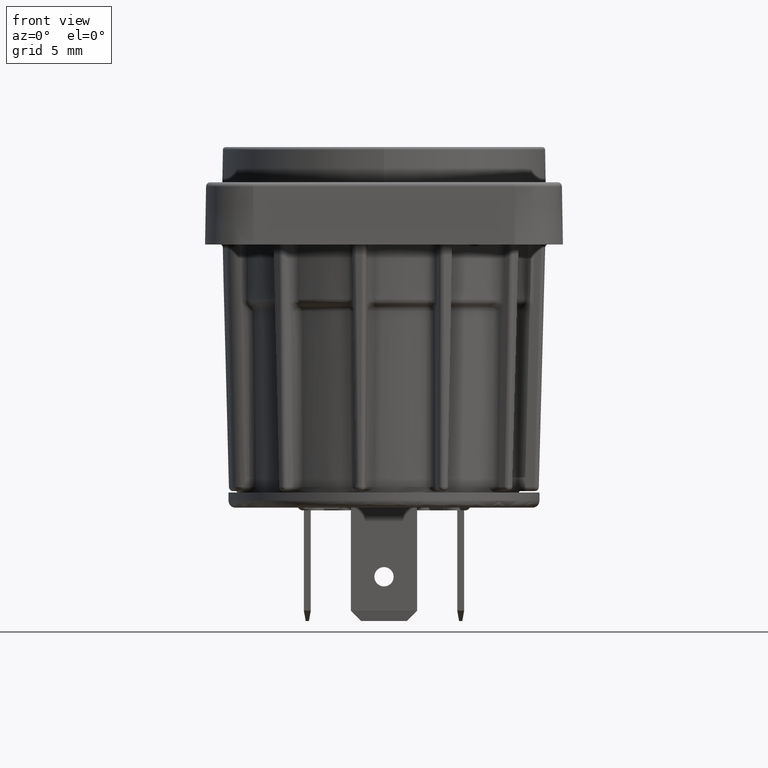
[diagram: clean part render]
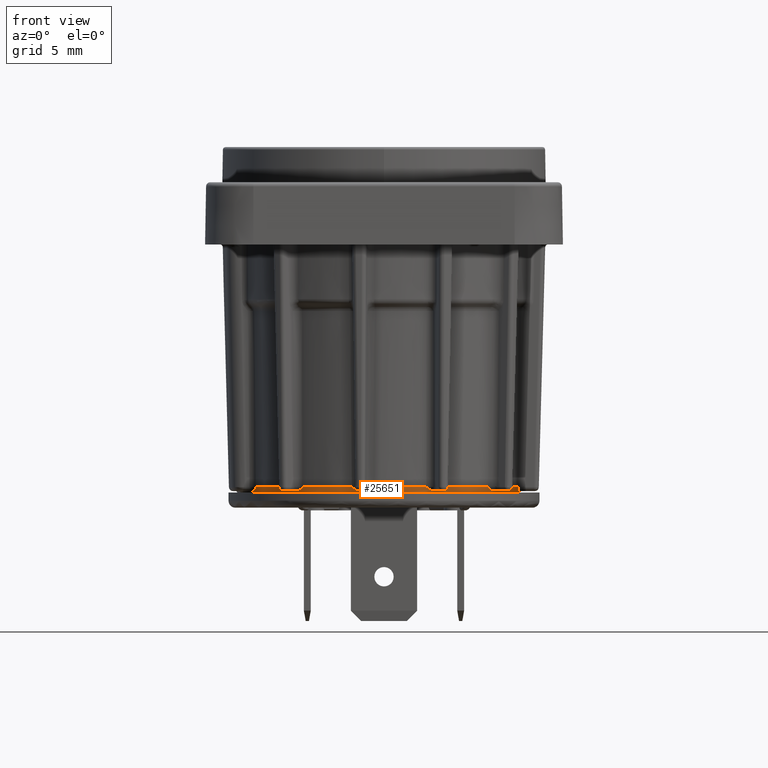
[diagram: same view with one face highlighted and labeled with its STEP entity id]
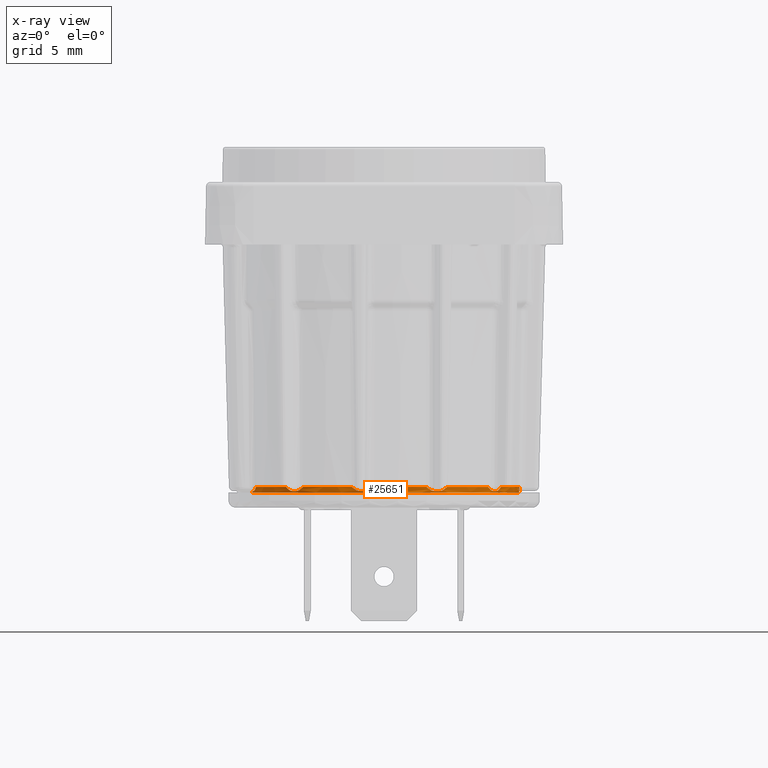
[diagram: x-ray of the same camera — body ghosted, the highlighted face saturated]
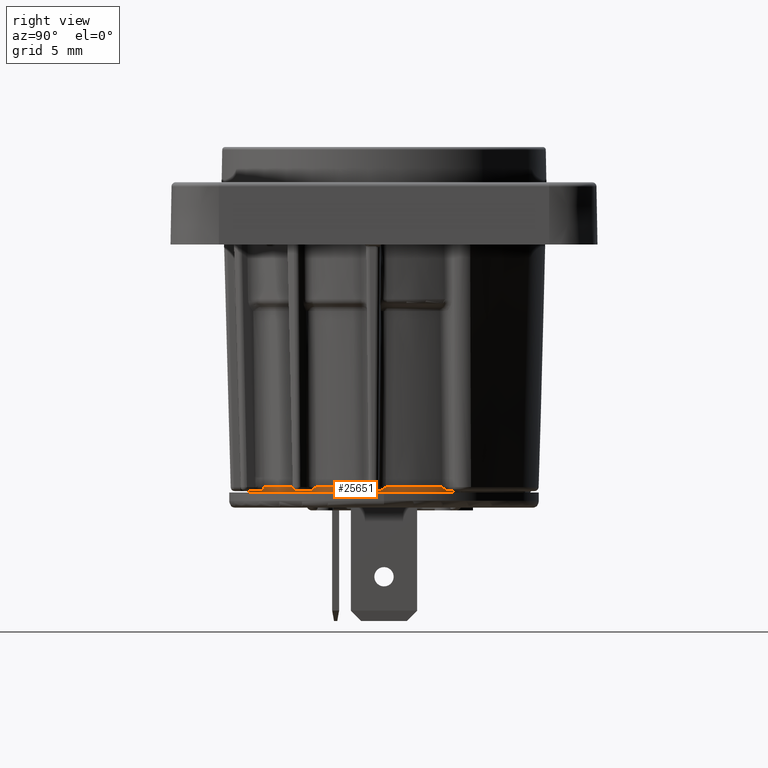
[diagram: same view with one face highlighted and labeled with its STEP entity id]
A machine part, front view. The second image highlights one B-rep face of the part: STEP entity #25651.
The next image is the same camera in x-ray: the body ghosted, the highlighted face saturated — about 0% of this face is hidden behind the body in this view.
A second angle (right view) of the same face is appended — the face is thin or edge-on in the first view.
In plain terms, the highlighted cylindrical surface (partial cylindrical patch) has radius 9.7999 mm, axis along (0, 0, 1).
Its self-contained STEP definition (entity closure, byte-faithful):
#3413=CARTESIAN_POINT('',(8.438472940982E0,4.983060482447E0,-1.785E1));
#3414=CARTESIAN_POINT('',(8.423401711862E0,5.008582580678E0,-1.788331013243E1));
#3415=CARTESIAN_POINT('',(8.408228310704E0,5.034013254970E0,-1.791664350661E1));
#3416=CARTESIAN_POINT('',(8.392953276214E0,5.059352987359E0,-1.795E1));
#3428=CARTESIAN_POINT('',(0.E0,0.E0,-1.795E1));
#3429=DIRECTION('',(0.E0,0.E0,-1.E0));
#3430=DIRECTION('',(8.564295226937E-1,5.162639563815E-1,0.E0));
#3431=AXIS2_PLACEMENT_3D('',#3428,#3429,#3430);
#3433=CARTESIAN_POINT('',(9.788232561850E0,-4.787699474191E-1,
-1.784999999282E1));
#3434=CARTESIAN_POINT('',(9.789479816119E0,-4.532704148428E-1,
-1.784999993744E1));
#3435=CARTESIAN_POINT('',(9.791626640025E0,-4.052954863772E-1,
-1.784588138039E1));
#3436=CARTESIAN_POINT('',(9.793992972525E0,-3.428458483995E-1,
-1.783262117726E1));
#3437=CARTESIAN_POINT('',(9.795732962065E0,-2.884352684042E-1,
-1.781552166700E1));
#3438=CARTESIAN_POINT('',(9.797012108746E0,-2.406989814552E-1,
-1.779647876372E1));
#3439=CARTESIAN_POINT('',(9.797946662365E0,-1.986897885027E-1,
-1.777675073206E1));
#3440=CARTESIAN_POINT('',(9.798626149650E0,-1.614116194294E-1,
-1.775703560890E1));
#3441=CARTESIAN_POINT('',(9.799112183485E0,-1.282336613321E-1,
-1.773783817530E1));
#3442=CARTESIAN_POINT('',(9.799451852802E0,-9.860286084843E-2,
-1.771946450270E1));
#3443=CARTESIAN_POINT('',(9.799681104063E0,-7.197307368722E-2,
-1.770203406494E1));
#3444=CARTESIAN_POINT('',(9.799826216365E0,-4.793347070480E-2,
-1.768561230197E1));
#3445=CARTESIAN_POINT('',(9.799907151241E0,-2.610725933773E-2,
-1.767018975187E1));
#3446=CARTESIAN_POINT('',(9.799938853426E0,-6.155591697604E-3,
-1.765570689033E1));
#3447=CARTESIAN_POINT('',(9.799932210910E0,1.227573345948E-2,
-1.764203865298E1));
#3448=CARTESIAN_POINT('',(9.799895249258E0,2.931487468296E-2,
-1.762918555532E1));
#3449=CARTESIAN_POINT('',(9.799835214560E0,4.496289411572E-2,
-1.761722583715E1));
#3450=CARTESIAN_POINT('',(9.799758471394E0,5.927538257919E-2,
-1.760618258155E1));
#3451=CARTESIAN_POINT('',(9.799669890644E0,7.238875496211E-2,
-1.759599534820E1));
#3452=CARTESIAN_POINT('',(9.799573024132E0,8.443639536409E-2,
-1.758661547145E1));
#3453=CARTESIAN_POINT('',(9.799471110643E0,9.551931442864E-2,
-1.757795183781E1));
#3454=CARTESIAN_POINT('',(9.799360617874E0,1.062058558382E-1,
-1.756981004040E1));
#3455=CARTESIAN_POINT('',(9.799267302335E0,1.144311646534E-1,
-1.756316810326E1));
#3456=CARTESIAN_POINT('',(9.799155460301E0,1.238541945938E-1,
-1.755748015136E1));
#3457=CARTESIAN_POINT('',(9.799096830290E0,1.283718693695E-1,
-1.755532107111E1));
#3463=CARTESIAN_POINT('',(-9.536423760542E0,-2.257285805296E0,-1.795E1));
#3464=CARTESIAN_POINT('',(-9.529800219551E0,-2.285268479681E0,
-1.791665154727E1));
#3465=CARTESIAN_POINT('',(-9.523049615925E0,-2.313238482852E0,
-1.788331819551E1));
#3466=CARTESIAN_POINT('',(-9.516171484446E0,-2.341195768413E0,-1.785E1));
#3640=CARTESIAN_POINT('',(0.E0,0.E0,-1.785E1));
#3641=DIRECTION('',(0.E0,0.E0,1.E0));
#3642=DIRECTION('',(-9.710443909407E-1,-2.388991226911E-1,0.E0));
#3643=AXIS2_PLACEMENT_3D('',#3640,#3641,#3642);
#3658=CARTESIAN_POINT('',(0.E0,0.E0,-1.785E1));
#3659=DIRECTION('',(0.E0,0.E0,1.E0));
#3660=DIRECTION('',(-6.781562666008E-1,-7.349177355800E-1,0.E0));
#3661=AXIS2_PLACEMENT_3D('',#3658,#3659,#3660);
#3700=CARTESIAN_POINT('',(0.E0,0.E0,-1.785E1));
#3701=DIRECTION('',(0.E0,0.E0,1.E0));
#3702=DIRECTION('',(-1.770801826825E-1,-9.841964280067E-1,0.E0));
#3703=AXIS2_PLACEMENT_3D('',#3700,#3701,#3702);
#3742=CARTESIAN_POINT('',(0.E0,0.E0,-1.785E1));
#3743=DIRECTION('',(0.E0,0.E0,1.E0));
#3744=DIRECTION('',(3.713721352045E-1,-9.284841071303E-1,0.E0));
#3745=AXIS2_PLACEMENT_3D('',#3742,#3743,#3744);
#3784=CARTESIAN_POINT('',(0.E0,0.E0,-1.785E1));
#3785=DIRECTION('',(0.E0,0.E0,1.E0));
#3786=DIRECTION('',(8.069630471241E-1,-5.906019307251E-1,0.E0));
#3787=AXIS2_PLACEMENT_3D('',#3784,#3785,#3786);
#3826=CARTESIAN_POINT('',(0.E0,0.E0,-1.785E1));
#3827=DIRECTION('',(0.E0,0.E0,1.E0));
#3828=DIRECTION('',(9.958848183077E-1,-9.062796844364E-2,0.E0));
#3829=AXIS2_PLACEMENT_3D('',#3826,#3827,#3828);
#3888=CARTESIAN_POINT('',(0.E0,0.E0,-1.785E1));
#3889=DIRECTION('',(0.E0,0.E0,1.E0));
#3890=DIRECTION('',(8.753122971789E-1,4.835580445070E-1,0.E0));
#3891=AXIS2_PLACEMENT_3D('',#3888,#3889,#3890);
#5655=CARTESIAN_POINT('',(-6.645887007571E0,-7.202145737904E0,
-1.784999999771E1));
#5656=CARTESIAN_POINT('',(-6.662628349994E0,-7.186697415617E0,
-1.784999996452E1));
#5657=CARTESIAN_POINT('',(-6.694108342850E0,-7.157432611210E0,
-1.784671434057E1));
#5658=CARTESIAN_POINT('',(-6.735169749859E0,-7.118787082505E0,
-1.783592554594E1));
#5659=CARTESIAN_POINT('',(-6.771020340188E0,-7.084681728954E0,
-1.782181377155E1));
#5660=CARTESIAN_POINT('',(-6.802421184972E0,-7.054526230503E0,
-1.780597723100E1));
#5661=CARTESIAN_POINT('',(-6.830146745957E0,-7.027677529582E0,
-1.778937555818E1));
#5662=CARTESIAN_POINT('',(-6.854665410947E0,-7.003758096124E0,
-1.777270742347E1));
#5663=CARTESIAN_POINT('',(-6.876532861196E0,-6.982284214425E0,
-1.775632177353E1));
#5664=CARTESIAN_POINT('',(-6.896067999216E0,-6.962987025763E0,
-1.774051478968E1));
#5665=CARTESIAN_POINT('',(-6.913569931774E0,-6.945606543595E0,
-1.772545679915E1));
#5666=CARTESIAN_POINT('',(-6.929314733153E0,-6.929896357863E0,
-1.771122158885E1));
#5667=CARTESIAN_POINT('',(-6.943547140796E0,-6.915633946120E0,
-1.769782097086E1));
#5668=CARTESIAN_POINT('',(-6.956434252685E0,-6.902669109712E0,
-1.768527515636E1));
#5669=CARTESIAN_POINT('',(-6.968138745062E0,-6.890852174257E0,
-1.767356293956E1));
#5670=CARTESIAN_POINT('',(-6.978808963167E0,-6.880044556802E0,
-1.766263896660E1));
#5671=CARTESIAN_POINT('',(-6.988585727851E0,-6.870112545405E0,
-1.765243783701E1));
#5672=CARTESIAN_POINT('',(-6.997600146763E0,-6.860930023857E0,
-1.764288240350E1));
#5673=CARTESIAN_POINT('',(-7.005985417117E0,-6.852366760719E0,
-1.763387466540E1));
#5674=CARTESIAN_POINT('',(-7.013776537797E0,-6.844391458402E0,
-1.762541096163E1));
#5675=CARTESIAN_POINT('',(-7.020993805892E0,-6.836987366458E0,
-1.761749804160E1));
#5676=CARTESIAN_POINT('',(-7.027658429184E0,-6.830136338660E0,
-1.761013652519E1));
#5677=CARTESIAN_POINT('',(-7.033791878188E0,-6.823819516964E0,
-1.760332155632E1));
#5678=CARTESIAN_POINT('',(-7.039403736785E0,-6.818029936277E0,
-1.759705830190E1));
#5679=CARTESIAN_POINT('',(-7.044550691519E0,-6.812711621841E0,
-1.759129638076E1));
#5680=CARTESIAN_POINT('',(-7.049271443754E0,-6.807826637550E0,
-1.758600300852E1));
#5681=CARTESIAN_POINT('',(-7.053591697735E0,-6.803350152481E0,
-1.758115875223E1));
#5682=CARTESIAN_POINT('',(-7.057547504991E0,-6.799246317812E0,
-1.757673100386E1));
#5683=CARTESIAN_POINT('',(-7.061183291645E0,-6.795470278138E0,
-1.757267867172E1));
#5684=CARTESIAN_POINT('',(-7.064548822241E0,-6.791971337684E0,
-1.756895528532E1));
#5685=CARTESIAN_POINT('',(-7.067706327339E0,-6.788685516491E0,
-1.756551378962E1));
#5686=CARTESIAN_POINT('',(-7.070697549433E0,-6.785569973181E0,
-1.756231906303E1));
#5687=CARTESIAN_POINT('',(-7.073673043451E0,-6.782468011808E0,
-1.755935195678E1));
#5688=CARTESIAN_POINT('',(-7.076444399075E0,-6.779576603998E0,
-1.755672743279E1));
#5689=CARTESIAN_POINT('',(-7.079008052209E0,-6.776899500014E0,
-1.755540663338E1));
#5690=CARTESIAN_POINT('',(-7.080156192822E0,-6.775699871112E0,
-1.755523696714E1));
#5713=CARTESIAN_POINT('',(-9.259615385055E0,-3.209098165242E0,
-1.755532354133E1));
#5714=CARTESIAN_POINT('',(-9.167210546752E0,-3.475851853088E0,
-1.754966985121E1));
#5715=CARTESIAN_POINT('',(-8.960204419357E0,-3.998671539369E0,
-1.755780579434E1));
#5716=CARTESIAN_POINT('',(-8.584170470667E0,-4.752621292174E0,
-1.755458927459E1));
#5717=CARTESIAN_POINT('',(-8.144664046495E0,-5.471726744657E0,
-1.755525143891E1));
#5718=CARTESIAN_POINT('',(-7.645109146500E0,-6.150397425099E0,
-1.755581930137E1));
#5719=CARTESIAN_POINT('',(-7.274492768842E0,-6.572648284197E0,
-1.755386355858E1));
#5720=CARTESIAN_POINT('',(-7.080156192822E0,-6.775699871112E0,
-1.755523696714E1));
#5761=CARTESIAN_POINT('',(-9.259615385055E0,-3.209098165242E0,
-1.755532354133E1));
#5762=CARTESIAN_POINT('',(-9.274320393501E0,-3.166647842244E0,
-1.757807942168E1));
#5763=CARTESIAN_POINT('',(-9.297184659192E0,-3.099134377631E0,
-1.764799083116E1));
#5764=CARTESIAN_POINT('',(-9.330715104653E0,-2.996716653065E0,
-1.771861612426E1));
#5765=CARTESIAN_POINT('',(-9.361851497728E0,-2.897910717890E0,
-1.777959763061E1));
#5766=CARTESIAN_POINT('',(-9.390966842818E0,-2.802079937252E0,
-1.782121491829E1));
#5767=CARTESIAN_POINT('',(-9.417484473258E0,-2.711535783106E0,
-1.784519795951E1));
#5768=CARTESIAN_POINT('',(-9.433156838266E0,-2.656130683724E0,
-1.784999991372E1));
#5769=CARTESIAN_POINT('',(-9.440557806935E0,-2.629559971047E0,
-1.784999998422E1));
#13162=CARTESIAN_POINT('',(8.578003215009E0,4.738837219267E0,
-1.784999999792E1));
#13163=CARTESIAN_POINT('',(8.588854328377E0,4.719195083524E0,
-1.784999996629E1));
#13164=CARTESIAN_POINT('',(8.609208438337E0,4.682032288501E0,
-1.784681059905E1));
#13165=CARTESIAN_POINT('',(8.635665975354E0,4.633022081245E0,
-1.783629463430E1));
#13166=CARTESIAN_POINT('',(8.658696167045E0,4.589814638736E0,
-1.782249740811E1));
#13167=CARTESIAN_POINT('',(8.678807922637E0,4.551654430025E0,
-1.780697873614E1));
#13168=CARTESIAN_POINT('',(8.696524913245E0,4.517699015725E0,
-1.779067169514E1));
#13169=CARTESIAN_POINT('',(8.712157005298E0,4.487469393085E0,
-1.777426702758E1));
#13170=CARTESIAN_POINT('',(8.726069823986E0,4.460347502851E0,
-1.775811221661E1));
#13171=CARTESIAN_POINT('',(8.738481173587E0,4.435976494703E0,
-1.774249505162E1));
#13172=CARTESIAN_POINT('',(8.749584665323E0,4.414030669113E0,
-1.772759115916E1));
#13173=CARTESIAN_POINT('',(8.759557662465E0,4.394202461257E0,
-1.771348205981E1));
#13174=CARTESIAN_POINT('',(8.768562346086E0,4.376203150876E0,
-1.770017946248E1));
#13175=CARTESIAN_POINT('',(8.776708345122E0,4.359840483460E0,
-1.768770555970E1));
#13176=CARTESIAN_POINT('',(8.784098914344E0,4.344928960122E0,
-1.767604605666E1));
#13177=CARTESIAN_POINT('',(8.790828079242E0,4.331296512702E0,
-1.766516173189E1));
#13178=CARTESIAN_POINT('',(8.796984331829E0,4.318778024091E0,
-1.765499327039E1));
#13179=CARTESIAN_POINT('',(8.802648861877E0,4.307219703671E0,
-1.764547096174E1));
#13180=CARTESIAN_POINT('',(8.807906276402E0,4.296457717600E0,
-1.763649980643E1));
#13181=CARTESIAN_POINT('',(8.812794516770E0,4.286421436183E0,
-1.762805147264E1));
#13182=CARTESIAN_POINT('',(8.817324502313E0,4.277094708332E0,
-1.762013772834E1));
#13183=CARTESIAN_POINT('',(8.821511883296E0,4.268450986114E0,
-1.761275735014E1));
#13184=CARTESIAN_POINT('',(8.825370093194E0,4.260467597015E0,
-1.760590752722E1));
#13185=CARTESIAN_POINT('',(8.828909765037E0,4.253127079696E0,
-1.759958676331E1));
#13186=CARTESIAN_POINT('',(8.832149422784E0,4.246395059511E0,
-1.759377646902E1));
#13187=CARTESIAN_POINT('',(8.835125571640E0,4.240199041963E0,
-1.758842295176E1));
#13188=CARTESIAN_POINT('',(8.837851279526E0,4.234514638675E0,
-1.758351276330E1));
#13189=CARTESIAN_POINT('',(8.840346931275E0,4.229301795624E0,
-1.757901793596E1));
#13190=CARTESIAN_POINT('',(8.842636196659E0,4.224513117022E0,
-1.757490358363E1));
#13191=CARTESIAN_POINT('',(8.844747213119E0,4.220091408918E0,
-1.757112790932E1));
#13192=CARTESIAN_POINT('',(8.846711112560E0,4.215972764114E0,
-1.756764632406E1));
#13193=CARTESIAN_POINT('',(8.848561616225E0,4.212087433381E0,
-1.756441887861E1));
#13194=CARTESIAN_POINT('',(8.850336022935E0,4.208357778576E0,
-1.756141103630E1));
#13195=CARTESIAN_POINT('',(8.852078465783E0,4.204691378533E0,
-1.755864772279E1));
#13196=CARTESIAN_POINT('',(8.853855833287E0,4.200947595066E0,
-1.755617351646E1));
#13197=CARTESIAN_POINT('',(8.855152499206E0,4.198213127516E0,
-1.755527314860E1));
#13198=CARTESIAN_POINT('',(8.855789180093E0,4.196869704532E0,
-1.755523641274E1));
#13217=CARTESIAN_POINT('',(9.799096830290E0,1.283718693695E-1,
-1.755532107111E1));
#13218=CARTESIAN_POINT('',(9.795438410800E0,4.102675943425E-1,
-1.755033570366E1));
#13219=CARTESIAN_POINT('',(9.763757772302E0,9.713203047166E-1,
-1.755750685672E1));
#13220=CARTESIAN_POINT('',(9.644578100671E0,1.804755830583E0,
-1.755463677759E1));
#13221=CARTESIAN_POINT('',(9.454284733017E0,2.625163011812E0,
-1.755536036452E1));
#13222=CARTESIAN_POINT('',(9.194365273832E0,3.426157911313E0,
-1.755533609593E1));
#13223=CARTESIAN_POINT('',(8.975937601211E0,3.943351570891E0,
-1.755491842088E1));
#13224=CARTESIAN_POINT('',(8.855789180093E0,4.196869704532E0,
-1.755523641274E1));
#13419=CARTESIAN_POINT('',(9.759606050217E0,-8.881481250185E-1,
-1.784999999768E1));
#13420=CARTESIAN_POINT('',(9.757541555673E0,-9.108342676441E-1,
-1.784999996434E1));
#13421=CARTESIAN_POINT('',(9.753488030919E0,-9.536243078215E-1,
-1.784671434102E1));
#13422=CARTESIAN_POINT('',(9.747825072534E0,-1.009726418759E0,
-1.783592554632E1));
#13423=CARTESIAN_POINT('',(9.742591933060E0,-1.058930627413E0,
-1.782181377272E1));
#13424=CARTESIAN_POINT('',(9.737783590839E0,-1.102200096435E0,
-1.780597723241E1));
#13425=CARTESIAN_POINT('',(9.733361336435E0,-1.140540716278E0,
-1.778937555994E1));
#13426=CARTESIAN_POINT('',(9.729310791530E0,-1.174553909730E0,
-1.777270742533E1));
#13427=CARTESIAN_POINT('',(9.725586476024E0,-1.204974995387E0,
-1.775632177550E1));
#13428=CARTESIAN_POINT('',(9.722169225460E0,-1.232220646754E0,
-1.774051479172E1));
#13429=CARTESIAN_POINT('',(9.719034863355E0,-1.256686430600E0,
-1.772545680113E1));
#13430=CARTESIAN_POINT('',(9.716155962778E0,-1.278741376821E0,
-1.771122159095E1));
#13431=CARTESIAN_POINT('',(9.713504971610E0,-1.298715111060E0,
-1.769782097278E1));
#13432=CARTESIAN_POINT('',(9.711064451955E0,-1.316831636956E0,
-1.768527515836E1));
#13433=CARTESIAN_POINT('',(9.708814690231E0,-1.333311129728E0,
-1.767356294150E1));
#13434=CARTESIAN_POINT('',(9.706736048046E0,-1.348355643561E0,
-1.766263896836E1));
#13435=CARTESIAN_POINT('',(9.704808170839E0,-1.362158298170E0,
-1.765243783885E1));
#13436=CARTESIAN_POINT('',(9.703010817222E0,-1.374899882581E0,
-1.764288240537E1));
#13437=CARTESIAN_POINT('',(9.701321752980E0,-1.386765349084E0,
-1.763387466716E1));
#13438=CARTESIAN_POINT('',(9.699737454010E0,-1.397801517123E0,
-1.762541096325E1));
#13439=CARTESIAN_POINT('',(9.698256987355E0,-1.408034686610E0,
-1.761749804324E1));
#13440=CARTESIAN_POINT('',(9.696878867149E0,-1.417492729363E0,
-1.761013652680E1));
#13441=CARTESIAN_POINT('',(9.695601202726E0,-1.426204159106E0,
-1.760332155782E1));
#13442=CARTESIAN_POINT('',(9.694424302599E0,-1.434180819361E0,
-1.759705830329E1));
#13443=CARTESIAN_POINT('',(9.693338267590E0,-1.441501757830E0,
-1.759129638211E1));
#13444=CARTESIAN_POINT('',(9.692336560846E0,-1.448220772517E0,
-1.758600300993E1));
#13445=CARTESIAN_POINT('',(9.691415130425E0,-1.454373372066E0,
-1.758115875377E1));
#13446=CARTESIAN_POINT('',(9.690567482348E0,-1.460009981313E0,
-1.757673100547E1));
#13447=CARTESIAN_POINT('',(9.689785075332E0,-1.465193152164E0,
-1.757267867336E1));
#13448=CARTESIAN_POINT('',(9.689057984447E0,-1.469993227111E0,
-1.756895528698E1));
#13449=CARTESIAN_POINT('',(9.688373334545E0,-1.474498525532E0,
-1.756551379125E1));
#13450=CARTESIAN_POINT('',(9.687722548503E0,-1.478768244088E0,
-1.756231906462E1));
#13451=CARTESIAN_POINT('',(9.687072963067E0,-1.483017216706E0,
-1.755935195820E1));
#13452=CARTESIAN_POINT('',(9.686466149539E0,-1.486976057811E0,
-1.755672743418E1));
#13453=CARTESIAN_POINT('',(9.685902913125E0,-1.490639659359E0,
-1.755540663375E1));
#13454=CARTESIAN_POINT('',(9.685650127195E0,-1.492280828703E0,
-1.755523696716E1));
#13477=CARTESIAN_POINT('',(8.465513186541E0,-4.936990455088E0,
-1.755531359669E1));
#13478=CARTESIAN_POINT('',(8.620597690075E0,-4.671154674818E0,
-1.754920418517E1));
#13479=CARTESIAN_POINT('',(8.904229608015E0,-4.127254607482E0,
-1.755808953081E1));
#13480=CARTESIAN_POINT('',(9.251351066978E0,-3.276118803859E0,
-1.755429469600E1));
#13481=CARTESIAN_POINT('',(9.517315672054E0,-2.395982430745E0,
-1.755614601678E1));
#13482=CARTESIAN_POINT('',(9.638984259374E0,-1.795250980449E0,
-1.755373905124E1));
#13483=CARTESIAN_POINT('',(9.685650127195E0,-1.492280828703E0,
-1.755523696716E1));
#13527=CARTESIAN_POINT('',(8.465513186541E0,-4.936990455088E0,
-1.755531359669E1));
#13528=CARTESIAN_POINT('',(8.443065381030E0,-4.975469024882E0,
-1.757766648303E1));
#13529=CARTESIAN_POINT('',(8.407022490881E0,-5.036296448640E0,
-1.764733346265E1));
#13530=CARTESIAN_POINT('',(8.350511641100E0,-5.129481848114E0,
-1.771883147258E1));
#13531=CARTESIAN_POINT('',(8.295756495279E0,-5.217521007950E0,
-1.777975301253E1));
#13532=CARTESIAN_POINT('',(8.242437924897E0,-5.301329999281E0,
-1.782103690013E1));
#13533=CARTESIAN_POINT('',(8.190932659149E0,-5.380528039105E0,
-1.784515899243E1));
#13534=CARTESIAN_POINT('',(8.158998175007E0,-5.428649507330E0,
-1.784999993266E1));
#13535=CARTESIAN_POINT('',(8.143568140549E0,-5.451698385609E0,
-1.784999999282E1));
#14270=CARTESIAN_POINT('',(4.562955991346E0,-8.672843875348E0,
-1.755531359669E1));
#14271=CARTESIAN_POINT('',(4.523528637227E0,-8.693580028625E0,
-1.757766648303E1));
#14272=CARTESIAN_POINT('',(4.460728909214E0,-8.726064787707E0,
-1.764733346265E1));
#14273=CARTESIAN_POINT('',(4.363424252321E0,-8.775144300383E0,
-1.771883147258E1));
#14274=CARTESIAN_POINT('',(4.270335608350E0,-8.820789935682E0,
-1.777975301253E1));
#14275=CARTESIAN_POINT('',(4.180706897226E0,-8.863609453633E0,
-1.782103690012E1));
#14276=CARTESIAN_POINT('',(4.095059387677E0,-8.903479567996E0,
-1.784515899242E1));
#14277=CARTESIAN_POINT('',(4.042476916163E0,-8.927366189167E0,
-1.784999993266E1));
#14278=CARTESIAN_POINT('',(4.017177460198E0,-8.938736074003E0,
-1.784999999282E1));
#14461=CARTESIAN_POINT('',(7.908185073425E0,-5.787860242946E0,
-1.784999999771E1));
#14462=CARTESIAN_POINT('',(7.894862068298E0,-5.806063998294E0,
-1.784999996485E1));
#14463=CARTESIAN_POINT('',(7.869587684351E0,-5.840333610886E0,
-1.784677739583E1));
#14464=CARTESIAN_POINT('',(7.836119280833E0,-5.885139058969E0,
-1.783616988184E1));
#14465=CARTESIAN_POINT('',(7.806510536178E0,-5.924340910725E0,
-1.782227002367E1));
#14466=CARTESIAN_POINT('',(7.780280251161E0,-5.958733661985E0,
-1.780665169493E1));
#14467=CARTESIAN_POINT('',(7.756879310615E0,-5.989154771473E0,
-1.779025556246E1));
#14468=CARTESIAN_POINT('',(7.735998242635E0,-6.016094522843E0,
-1.777377541640E1));
#14469=CARTESIAN_POINT('',(7.717226175192E0,-6.040150243812E0,
-1.775755899656E1));
#14470=CARTESIAN_POINT('',(7.700330817480E0,-6.061670232949E0,
-1.774189626630E1));
#14471=CARTESIAN_POINT('',(7.685094641894E0,-6.080971859330E0,
-1.772696092681E1));
#14472=CARTESIAN_POINT('',(7.671310285488E0,-6.098349280745E0,
-1.771283187705E1));
#14473=CARTESIAN_POINT('',(7.658783370031E0,-6.114072012425E0,
-1.769951995054E1));
#14474=CARTESIAN_POINT('',(7.647385143532E0,-6.128321016670E0,
-1.768704669655E1));
#14475=CARTESIAN_POINT('',(7.636989093283E0,-6.141270111748E0,
-1.767539561220E1));
#14476=CARTESIAN_POINT('',(7.627477405128E0,-6.153078565881E0,
-1.766452556987E1));
#14477=CARTESIAN_POINT('',(7.618736149592E0,-6.163897798597E0,
-1.765437522877E1));
#14478=CARTESIAN_POINT('',(7.610658711851E0,-6.173867686735E0,
-1.764487291508E1));
#14479=CARTESIAN_POINT('',(7.603130617391E0,-6.183135646491E0,
-1.763592141736E1));
#14480=CARTESIAN_POINT('',(7.596105723162E0,-6.191763359227E0,
-1.762749445997E1));
#14481=CARTESIAN_POINT('',(7.589573993472E0,-6.199767485021E0,
-1.761960366680E1));
#14482=CARTESIAN_POINT('',(7.583518344587E0,-6.207172867531E0,
-1.761224811890E1));
#14483=CARTESIAN_POINT('',(7.577923943532E0,-6.214001118552E0,
-1.760542492425E1));
#14484=CARTESIAN_POINT('',(7.572780415243E0,-6.220268013632E0,
-1.759913370239E1));
#14485=CARTESIAN_POINT('',(7.568061967701E0,-6.226007732743E0,
-1.759335281955E1));
#14486=CARTESIAN_POINT('',(7.563719054788E0,-6.231282826305E0,
-1.758802954177E1));
#14487=CARTESIAN_POINT('',(7.559735504770E0,-6.236114847637E0,
-1.758315094937E1));
#14488=CARTESIAN_POINT('',(7.556083443873E0,-6.240539269701E0,
-1.757868881753E1));
#14489=CARTESIAN_POINT('',(7.552729405271E0,-6.244598015036E0,
-1.757460776690E1));
#14490=CARTESIAN_POINT('',(7.549632858110E0,-6.248341247561E0,
-1.757086539493E1));
#14491=CARTESIAN_POINT('',(7.546748037921E0,-6.251825156431E0,
-1.756741653119E1));
#14492=CARTESIAN_POINT('',(7.544026271521E0,-6.255109172873E0,
-1.756422105100E1));
#14493=CARTESIAN_POINT('',(7.541408170168E0,-6.258265379918E0,
-1.756124417759E1));
#14494=CARTESIAN_POINT('',(7.538842032899E0,-6.261356376501E0,
-1.755851453213E1));
#14495=CARTESIAN_POINT('',(7.536171662189E0,-6.264570226313E0,
-1.755607724155E1));
#14496=CARTESIAN_POINT('',(7.534322411479E0,-6.266793856897E0,
-1.755524233738E1));
#14497=CARTESIAN_POINT('',(7.533383091270E0,-6.267922824863E0,
-1.755523576853E1));
#14499=CARTESIAN_POINT('',(4.562955991346E0,-8.672843875348E0,
-1.755531359669E1));
#14500=CARTESIAN_POINT('',(4.847959231717E0,-8.522951218114E0,
-1.754892129843E1));
#14501=CARTESIAN_POINT('',(5.400667207106E0,-8.196291105253E0,
-1.755816972389E1));
#14502=CARTESIAN_POINT('',(6.177164420602E0,-7.628231003352E0,
-1.755443835033E1));
#14503=CARTESIAN_POINT('',(6.894467001527E0,-6.986662268598E0,
-1.755549120636E1));
#14504=CARTESIAN_POINT('',(7.328459837615E0,-6.514219866595E0,
-1.755517117266E1));
#14505=CARTESIAN_POINT('',(7.533383091270E0,-6.267922824863E0,
-1.755523576853E1));
#14615=CARTESIAN_POINT('',(3.639422653921E0,-9.099083475468E0,
-1.784999999771E1));
#14616=CARTESIAN_POINT('',(3.618271890487E0,-9.107543291160E0,
-1.784999996453E1));
#14617=CARTESIAN_POINT('',(3.578305419977E0,-9.123357847379E0,
-1.784671434015E1));
#14618=CARTESIAN_POINT('',(3.525747140436E0,-9.143781941148E0,
-1.783592554436E1));
#14619=CARTESIAN_POINT('',(3.479530071356E0,-9.161457423925E0,
-1.782181376870E1));
#14620=CARTESIAN_POINT('',(3.438793748729E0,-9.176817088094E0,
-1.780597722692E1));
#14621=CARTESIAN_POINT('',(3.402624343823E0,-9.190283108041E0,
-1.778937555303E1));
#14622=CARTESIAN_POINT('',(3.370479457258E0,-9.202115712881E0,
-1.777270741743E1));
#14623=CARTESIAN_POINT('',(3.341683267331E0,-9.212608207395E0,
-1.775632176677E1));
#14624=CARTESIAN_POINT('',(3.315855815041E0,-9.221932681636E0,
-1.774051478242E1));
#14625=CARTESIAN_POINT('',(3.292633671503E0,-9.230247177906E0,
-1.772545679155E1));
#14626=CARTESIAN_POINT('',(3.271675577517E0,-9.237694794552E0,
-1.771122158105E1));
#14627=CARTESIAN_POINT('',(3.252675325417E0,-9.244400629603E0,
-1.769782096299E1));
#14628=CARTESIAN_POINT('',(3.235425410553E0,-9.250450841059E0,
-1.768527514854E1));
#14629=CARTESIAN_POINT('',(3.219720705071E0,-9.255927821630E0,
-1.767356293187E1));
#14630=CARTESIAN_POINT('',(3.205372261742E0,-9.260905804057E0,
-1.766263895911E1));
#14631=CARTESIAN_POINT('',(3.192198769168E0,-9.265454326701E0,
-1.765243782975E1));
#14632=CARTESIAN_POINT('',(3.180029953385E0,-9.269637430979E0,
-1.764288239648E1));
#14633=CARTESIAN_POINT('',(3.168690926541E0,-9.273519272655E0,
-1.763387465861E1));
#14634=CARTESIAN_POINT('',(3.158138372575E0,-9.277117967218E0,
-1.762541095515E1));
#14635=CARTESIAN_POINT('',(3.148348434631E0,-9.280444623273E0,
-1.761749803547E1));
#14636=CARTESIAN_POINT('',(3.139295604015E0,-9.283510570500E0,
-1.761013651947E1));
#14637=CARTESIAN_POINT('',(3.130953616435E0,-9.286327069272E0,
-1.760332155105E1));
#14638=CARTESIAN_POINT('',(3.123312059335E0,-9.288899771310E0,
-1.759705829713E1));
#14639=CARTESIAN_POINT('',(3.116296006474E0,-9.291255743320E0,
-1.759129637649E1));
#14640=CARTESIAN_POINT('',(3.109854555964E0,-9.293413584653E0,
-1.758600300479E1));
#14641=CARTESIAN_POINT('',(3.103954229786E0,-9.295385805603E0,
-1.758115874903E1));
#14642=CARTESIAN_POINT('',(3.098547150720E0,-9.297189512441E0,
-1.757673100120E1));
#14643=CARTESIAN_POINT('',(3.093573706981E0,-9.298845492788E0,
-1.757267866957E1));
#14644=CARTESIAN_POINT('',(3.088966717106E0,-9.300376838298E0,
-1.756895528364E1));
#14645=CARTESIAN_POINT('',(3.084641642772E0,-9.301812173281E0,
-1.756551378837E1));
#14646=CARTESIAN_POINT('',(3.080541845359E0,-9.303170730213E0,
-1.756231906216E1));
#14647=CARTESIAN_POINT('',(3.076461077872E0,-9.304520938403E0,
-1.755935195625E1));
#14648=CARTESIAN_POINT('',(3.072658236606E0,-9.305777539985E0,
-1.755672743251E1));
#14649=CARTESIAN_POINT('',(3.069138241152E0,-9.306938932498E0,
-1.755540663335E1));
#14650=CARTESIAN_POINT('',(3.067561186658E0,-9.307458773707E0,
-1.755523696714E1));
#14652=CARTESIAN_POINT('',(-7.263009058803E-1,-9.772987018266E0,
-1.755531359788E1));
#14653=CARTESIAN_POINT('',(-4.051734438149E-1,-9.796899543117E0,
-1.754892129947E1));
#14654=CARTESIAN_POINT('',(2.366524800829E-1,-9.812765836693E0,
-1.755822335795E1));
#14655=CARTESIAN_POINT('',(1.196187757009E0,-9.742508086425E0,
-1.755425062955E1));
#14656=CARTESIAN_POINT('',(2.144466032100E0,-9.578525810808E0,
-1.755618845544E1));
#14657=CARTESIAN_POINT('',(2.762890145561E0,-9.407886858488E0,
-1.755366940533E1));
#14658=CARTESIAN_POINT('',(3.067561186658E0,-9.307458773707E0,
-1.755523696714E1));
#14702=CARTESIAN_POINT('',(-7.263009058803E-1,-9.772987018266E0,
-1.755531359788E1));
#14703=CARTESIAN_POINT('',(-7.707256636659E-1,-9.769678960718E0,
-1.757766653206E1));
#14704=CARTESIAN_POINT('',(-8.411971857528E-1,-9.763948810691E0,
-1.764733344412E1));
#14705=CARTESIAN_POINT('',(-9.497243818774E-1,-9.754006986646E0,
-1.771883148025E1));
#14706=CARTESIAN_POINT('',(-1.052856533041E0,-9.743387214854E0,
-1.777975301211E1));
#14707=CARTESIAN_POINT('',(-1.151556876498E0,-9.732204245032E0,
-1.782103690094E1));
#14708=CARTESIAN_POINT('',(-1.245318025053E0,-9.720629754435E0,
-1.784515899237E1));
#14709=CARTESIAN_POINT('',(-1.302568470147E0,-9.713022293487E0,
-1.784999993265E1));
#14710=CARTESIAN_POINT('',(-1.330048746428E0,-9.709257833611E0,
-1.784999999282E1));
#14933=CARTESIAN_POINT('',(-1.735374167804E0,-9.645060593129E0,
-1.784999999771E1));
#14934=CARTESIAN_POINT('',(-1.757794050326E0,-9.641026726984E0,
-1.784999996452E1));
#14935=CARTESIAN_POINT('',(-1.800067974991E0,-9.633259229111E0,
-1.784671434056E1));
#14936=CARTESIAN_POINT('',(-1.855463041885E0,-9.622728198680E0,
-1.783592554592E1));
#14937=CARTESIAN_POINT('',(-1.904023916224E0,-9.613226543376E0,
-1.782181377151E1));
#14938=CARTESIAN_POINT('',(-1.946709657629E0,-9.604665315538E0,
-1.780597723095E1));
#14939=CARTESIAN_POINT('',(-1.984518955095E0,-9.596918283906E0,
-1.778937555812E1));
#14940=CARTESIAN_POINT('',(-2.018049689646E0,-9.589918707433E0,
-1.777270742339E1));
#14941=CARTESIAN_POINT('',(-2.048030418358E0,-9.583557191753E0,
-1.775632177344E1));
#14942=CARTESIAN_POINT('',(-2.074874558569E0,-9.577778329914E0,
-1.774051478959E1));
#14943=CARTESIAN_POINT('',(-2.098974065034E0,-9.572523561437E0,
-1.772545679905E1));
#14944=CARTESIAN_POINT('',(-2.120694172474E0,-9.567733400793E0,
-1.771122158875E1));
#14945=CARTESIAN_POINT('',(-2.140360851574E0,-9.563351671785E0,
-1.769782097076E1));
#14946=CARTESIAN_POINT('',(-2.158195733023E0,-9.559341479834E0,
-1.768527515625E1));
#14947=CARTESIAN_POINT('',(-2.174416436560E0,-9.555663996726E0,
-1.767356293945E1));
#14948=CARTESIAN_POINT('',(-2.189222535855E0,-9.552282048624E0,
-1.766263896650E1));
#14949=CARTESIAN_POINT('',(-2.202804641387E0,-9.549158527009E0,
-1.765243783691E1));
#14950=CARTESIAN_POINT('',(-2.215341090414E0,-9.546257510636E0,
-1.764288240340E1));
#14951=CARTESIAN_POINT('',(-2.227014193628E0,-9.543540730234E0,
-1.763387466530E1));
#14952=CARTESIAN_POINT('',(-2.237870284969E0,-9.541000594574E0,
-1.762541096154E1));
#14953=CARTESIAN_POINT('',(-2.247935482839E0,-9.538633882086E0,
-1.761749804151E1));
#14954=CARTESIAN_POINT('',(-2.257237423660E0,-9.536436683332E0,
-1.761013652511E1));
#14955=CARTESIAN_POINT('',(-2.265804347901E0,-9.534404629697E0,
-1.760332155623E1));
#14956=CARTESIAN_POINT('',(-2.273648080867E0,-9.532536996299E0,
-1.759705830182E1));
#14957=CARTESIAN_POINT('',(-2.280846506718E0,-9.530817032161E0,
-1.759129638068E1));
#14958=CARTESIAN_POINT('',(-2.287452648912E0,-9.529233536526E0,
-1.758600300846E1));
#14959=CARTESIAN_POINT('',(-2.293501527832E0,-9.527779378084E0,
-1.758115875216E1));
#14960=CARTESIAN_POINT('',(-2.299042810588E0,-9.526443692720E0,
-1.757673100381E1));
#14961=CARTESIAN_POINT('',(-2.304138066583E0,-9.525212519907E0,
-1.757267867166E1));
#14962=CARTESIAN_POINT('',(-2.308856505629E0,-9.524069841730E0,
-1.756895528528E1));
#14963=CARTESIAN_POINT('',(-2.313284988854E0,-9.522995134497E0,
-1.756551378958E1));
#14964=CARTESIAN_POINT('',(-2.317481740179E0,-9.521974694381E0,
-1.756231906299E1));
#14965=CARTESIAN_POINT('',(-2.321657929005E0,-9.520957258466E0,
-1.755935195675E1));
#14966=CARTESIAN_POINT('',(-2.325548818931E0,-9.520007718140E0,
-1.755672743277E1));
#14967=CARTESIAN_POINT('',(-2.329149388939E0,-9.519127321375E0,
-1.755540663337E1));
#14968=CARTESIAN_POINT('',(-2.330762281052E0,-9.518732460121E0,
-1.755523696714E1));
#14970=CARTESIAN_POINT('',(-5.863578066831E0,-7.852212460149E0,
-1.755531359669E1));
#14971=CARTESIAN_POINT('',(-5.652348869917E0,-8.009994340588E0,
-1.755007986405E1));
#14972=CARTESIAN_POINT('',(-5.219388134942E0,-8.306758876403E0,
-1.755761637299E1));
#14973=CARTESIAN_POINT('',(-4.537250546033E0,-8.698179727465E0,
-1.755463723006E1));
#14974=CARTESIAN_POINT('',(-3.825708642987E0,-9.033763108089E0,
-1.755524903836E1));
#14975=CARTESIAN_POINT('',(-3.089631097929E0,-9.311222207775E0,
-1.755578094807E1));
#14976=CARTESIAN_POINT('',(-2.585656813528E0,-9.456330285912E0,
-1.755395464999E1));
#14977=CARTESIAN_POINT('',(-2.330762281052E0,-9.518732460121E0,
-1.755523696714E1));
#15021=CARTESIAN_POINT('',(-5.863578066831E0,-7.852212460149E0,
-1.755531359669E1));
#15022=CARTESIAN_POINT('',(-5.899268127098E0,-7.825553054610E0,
-1.757766648303E1));
#15023=CARTESIAN_POINT('',(-5.955624372398E0,-7.782855993507E0,
-1.764733346265E1));
#15024=CARTESIAN_POINT('',(-6.041813552865E0,-7.716159516929E0,
-1.771883147258E1));
#15025=CARTESIAN_POINT('',(-6.123088325797E0,-7.651790029258E0,
-1.777975301252E1));
#15026=CARTESIAN_POINT('',(-6.200322747313E0,-7.589326751181E0,
-1.782103690012E1));
#15027=CARTESIAN_POINT('',(-6.273181129097E0,-7.529187096085E0,
-1.784515899242E1));
#15028=CARTESIAN_POINT('',(-6.317378179344E0,-7.492010386561E0,
-1.784999993266E1));
#15029=CARTESIAN_POINT('',(-6.338532166618E0,-7.474070331497E0,
-1.784999999282E1));
#21054=CARTESIAN_POINT('',(8.578003230448E0,4.738837191319E0,-1.785E1));
#21055=CARTESIAN_POINT('',(8.438472940982E0,4.983060482447E0,-1.785E1));
#21056=VERTEX_POINT('',#21054);
#21057=VERTEX_POINT('',#21055);
#21062=CARTESIAN_POINT('',(-9.516171484446E0,-2.341195768413E0,-1.785E1));
#21063=CARTESIAN_POINT('',(-9.440557758746E0,-2.629560144054E0,-1.785E1));
#21064=VERTEX_POINT('',#21062);
#21065=VERTEX_POINT('',#21063);
#21066=CARTESIAN_POINT('',(-6.645887033004E0,-7.202145714435E0,-1.785E1));
#21067=CARTESIAN_POINT('',(-6.338532104527E0,-7.474070384154E0,-1.785E1));
#21068=VERTEX_POINT('',#21066);
#21069=VERTEX_POINT('',#21067);
#21070=CARTESIAN_POINT('',(-1.735374201864E0,-9.645060587001E0,-1.785E1));
#21071=CARTESIAN_POINT('',(-1.330048665768E0,-9.709257844660E0,-1.785E1));
#21072=VERTEX_POINT('',#21070);
#21073=VERTEX_POINT('',#21071);
#21074=CARTESIAN_POINT('',(3.639422621789E0,-9.099083488320E0,-1.785E1));
#21075=CARTESIAN_POINT('',(4.017177534457E0,-8.938736040631E0,-1.785E1));
#21076=VERTEX_POINT('',#21074);
#21077=VERTEX_POINT('',#21075);
#21078=CARTESIAN_POINT('',(7.908185052801E0,-5.787860271125E0,-1.785E1));
#21079=CARTESIAN_POINT('',(8.143568185839E0,-5.451698317956E0,-1.785E1));
#21080=VERTEX_POINT('',#21078);
#21081=VERTEX_POINT('',#21079);
#21082=CARTESIAN_POINT('',(9.759606047043E0,-8.881481599014E-1,-1.785E1));
#21083=CARTESIAN_POINT('',(9.788232566611E0,-4.787698500757E-1,-1.785E1));
#21084=VERTEX_POINT('',#21082);
#21085=VERTEX_POINT('',#21083);
#21094=VERTEX_POINT('',#3416);
#21095=VERTEX_POINT('',#3463);
#21147=VERTEX_POINT('',#14652);
#21148=VERTEX_POINT('',#14658);
#21149=VERTEX_POINT('',#13217);
#21150=VERTEX_POINT('',#13224);
#21151=VERTEX_POINT('',#14499);
#21152=VERTEX_POINT('',#14505);
#21153=VERTEX_POINT('',#13477);
#21154=VERTEX_POINT('',#13483);
#21155=VERTEX_POINT('',#5713);
#21156=VERTEX_POINT('',#5720);
#21157=VERTEX_POINT('',#14970);
#21158=VERTEX_POINT('',#14977);
#25590=CARTESIAN_POINT('',(0.E0,0.E0,-1.795E1));
#25591=DIRECTION('',(0.E0,0.E0,1.E0));
#25592=DIRECTION('',(1.E0,0.E0,0.E0));
#25593=AXIS2_PLACEMENT_3D('',#25590,#25591,#25592);
#25594=CYLINDRICAL_SURFACE('',#25593,9.799934558323E0);
#25595=ORIENTED_EDGE('',*,*,#25480,.T.);
#25597=ORIENTED_EDGE('',*,*,#25596,.T.);
#25599=ORIENTED_EDGE('',*,*,#25598,.T.);
#25601=ORIENTED_EDGE('',*,*,#25600,.F.);
#25603=ORIENTED_EDGE('',*,*,#25602,.T.);
#25605=ORIENTED_EDGE('',*,*,#25604,.F.);
#25607=ORIENTED_EDGE('',*,*,#25606,.T.);
#25609=ORIENTED_EDGE('',*,*,#25608,.F.);
#25611=ORIENTED_EDGE('',*,*,#25610,.T.);
#25613=ORIENTED_EDGE('',*,*,#25612,.F.);
#25615=ORIENTED_EDGE('',*,*,#25614,.T.);
#25617=ORIENTED_EDGE('',*,*,#25616,.F.);
#25619=ORIENTED_EDGE('',*,*,#25618,.T.);
#25621=ORIENTED_EDGE('',*,*,#25620,.F.);
#25623=ORIENTED_EDGE('',*,*,#25622,.T.);
#25625=ORIENTED_EDGE('',*,*,#25624,.F.);
#25627=ORIENTED_EDGE('',*,*,#25626,.T.);
#25629=ORIENTED_EDGE('',*,*,#25628,.F.);
#25631=ORIENTED_EDGE('',*,*,#25630,.T.);
#25633=ORIENTED_EDGE('',*,*,#25632,.F.);
#25635=ORIENTED_EDGE('',*,*,#25634,.T.);
#25637=ORIENTED_EDGE('',*,*,#25636,.F.);
#25639=ORIENTED_EDGE('',*,*,#25638,.T.);
#25641=ORIENTED_EDGE('',*,*,#25640,.T.);
#25643=ORIENTED_EDGE('',*,*,#25642,.T.);
#25645=ORIENTED_EDGE('',*,*,#25644,.F.);
#25647=ORIENTED_EDGE('',*,*,#25646,.T.);
#25648=ORIENTED_EDGE('',*,*,#25581,.T.);
#25649=EDGE_LOOP('',(#25595,#25597,#25599,#25601,#25603,#25605,#25607,#25609,
#25611,#25613,#25615,#25617,#25619,#25621,#25623,#25625,#25627,#25629,#25631,
#25633,#25635,#25637,#25639,#25641,#25643,#25645,#25647,#25648));
#25650=FACE_OUTER_BOUND('',#25649,.F.);
#25651=ADVANCED_FACE('',(#25650),#25594,.T.);
#3417=B_SPLINE_CURVE_WITH_KNOTS('',3,(#3413,#3414,#3415,#3416),.UNSPECIFIED.,
.F.,.F.,(4,4),(0.E0,1.E0),.UNSPECIFIED.);
#3432=CIRCLE('',#3431,9.799934558323E0);
#3458=B_SPLINE_CURVE_WITH_KNOTS('',3,(#3433,#3434,#3435,#3436,#3437,#3438,#3439,
#3440,#3441,#3442,#3443,#3444,#3445,#3446,#3447,#3448,#3449,#3450,#3451,#3452,
#3453,#3454,#3455,#3456,#3457),.UNSPECIFIED.,.F.,.F.,(4,1,1,1,1,1,1,1,1,1,1,1,1,
1,1,1,1,1,1,1,1,1,4),(0.E0,4.545454545455E-2,9.090909090909E-2,
1.363636363636E-1,1.818181818182E-1,2.272727272727E-1,2.727272727273E-1,
3.181818181818E-1,3.636363636364E-1,4.090909090909E-1,4.545454545455E-1,5.E-1,
5.454545454545E-1,5.909090909091E-1,6.363636363636E-1,6.818181818182E-1,
7.272727272727E-1,7.727272727273E-1,8.181818181818E-1,8.636363636364E-1,
9.090909090909E-1,9.545454545455E-1,1.E0),.UNSPECIFIED.);
#3467=B_SPLINE_CURVE_WITH_KNOTS('',3,(#3463,#3464,#3465,#3466),.UNSPECIFIED.,
.F.,.F.,(4,4),(0.E0,1.E0),.UNSPECIFIED.);
#3644=CIRCLE('',#3643,9.799934558323E0);
#3662=CIRCLE('',#3661,9.799934558323E0);
#3704=CIRCLE('',#3703,9.799934558323E0);
#3746=CIRCLE('',#3745,9.799934558323E0);
#3788=CIRCLE('',#3787,9.799934558323E0);
#3830=CIRCLE('',#3829,9.799934558323E0);
#3892=CIRCLE('',#3891,9.799934558323E0);
#5691=B_SPLINE_CURVE_WITH_KNOTS('',3,(#5655,#5656,#5657,#5658,#5659,#5660,#5661,
#5662,#5663,#5664,#5665,#5666,#5667,#5668,#5669,#5670,#5671,#5672,#5673,#5674,
#5675,#5676,#5677,#5678,#5679,#5680,#5681,#5682,#5683,#5684,#5685,#5686,#5687,
#5688,#5689,#5690),.UNSPECIFIED.,.F.,.F.,(4,1,1,1,1,1,1,1,1,1,1,1,1,1,1,1,1,1,1,
1,1,1,1,1,1,1,1,1,1,1,1,1,1,4),(0.E0,3.030303030303E-2,6.060606060606E-2,
9.090909090909E-2,1.212121212121E-1,1.515151515152E-1,1.818181818182E-1,
2.121212121212E-1,2.424242424242E-1,2.727272727273E-1,3.030303030303E-1,
3.333333333333E-1,3.636363636364E-1,3.939393939394E-1,4.242424242424E-1,
4.545454545455E-1,4.848484848485E-1,5.151515151515E-1,5.454545454545E-1,
5.757575757576E-1,6.060606060606E-1,6.363636363636E-1,6.666666666667E-1,
6.969696969697E-1,7.272727272727E-1,7.575757575758E-1,7.878787878788E-1,
8.181818181818E-1,8.484848484848E-1,8.787878787879E-1,9.090909090909E-1,
9.393939393939E-1,9.696969696970E-1,1.E0),.UNSPECIFIED.);
#5721=B_SPLINE_CURVE_WITH_KNOTS('',3,(#5713,#5714,#5715,#5716,#5717,#5718,#5719,
#5720),.UNSPECIFIED.,.F.,.F.,(4,1,1,1,1,4),(0.E0,2.E-1,4.E-1,6.E-1,8.E-1,1.E0),
.UNSPECIFIED.);
#5770=B_SPLINE_CURVE_WITH_KNOTS('',3,(#5761,#5762,#5763,#5764,#5765,#5766,#5767,
#5768,#5769),.UNSPECIFIED.,.F.,.F.,(4,1,1,1,1,1,4),(0.E0,1.666666666667E-1,
3.333333333333E-1,5.E-1,6.666666666667E-1,8.333333333333E-1,1.E0),
.UNSPECIFIED.);
#13199=B_SPLINE_CURVE_WITH_KNOTS('',3,(#13162,#13163,#13164,#13165,#13166,
#13167,#13168,#13169,#13170,#13171,#13172,#13173,#13174,#13175,#13176,#13177,
#13178,#13179,#13180,#13181,#13182,#13183,#13184,#13185,#13186,#13187,#13188,
#13189,#13190,#13191,#13192,#13193,#13194,#13195,#13196,#13197,#13198),
.UNSPECIFIED.,.F.,.F.,(4,1,1,1,1,1,1,1,1,1,1,1,1,1,1,1,1,1,1,1,1,1,1,1,1,1,1,1,
1,1,1,1,1,1,4),(0.E0,2.941176470588E-2,5.882352941176E-2,8.823529411765E-2,
1.176470588235E-1,1.470588235294E-1,1.764705882353E-1,2.058823529412E-1,
2.352941176471E-1,2.647058823529E-1,2.941176470588E-1,3.235294117647E-1,
3.529411764706E-1,3.823529411765E-1,4.117647058824E-1,4.411764705882E-1,
4.705882352941E-1,5.E-1,5.294117647059E-1,5.588235294118E-1,5.882352941176E-1,
6.176470588235E-1,6.470588235294E-1,6.764705882353E-1,7.058823529412E-1,
7.352941176471E-1,7.647058823529E-1,7.941176470588E-1,8.235294117647E-1,
8.529411764706E-1,8.823529411765E-1,9.117647058824E-1,9.411764705882E-1,
9.705882352941E-1,1.E0),.UNSPECIFIED.);
#13225=B_SPLINE_CURVE_WITH_KNOTS('',3,(#13217,#13218,#13219,#13220,#13221,
#13222,#13223,#13224),.UNSPECIFIED.,.F.,.F.,(4,1,1,1,1,4),(0.E0,2.E-1,4.E-1,
6.E-1,8.E-1,1.E0),.UNSPECIFIED.);
#13455=B_SPLINE_CURVE_WITH_KNOTS('',3,(#13419,#13420,#13421,#13422,#13423,
#13424,#13425,#13426,#13427,#13428,#13429,#13430,#13431,#13432,#13433,#13434,
#13435,#13436,#13437,#13438,#13439,#13440,#13441,#13442,#13443,#13444,#13445,
#13446,#13447,#13448,#13449,#13450,#13451,#13452,#13453,#13454),.UNSPECIFIED.,
.F.,.F.,(4,1,1,1,1,1,1,1,1,1,1,1,1,1,1,1,1,1,1,1,1,1,1,1,1,1,1,1,1,1,1,1,1,4),(
0.E0,3.030303030303E-2,6.060606060606E-2,9.090909090909E-2,1.212121212121E-1,
1.515151515152E-1,1.818181818182E-1,2.121212121212E-1,2.424242424242E-1,
2.727272727273E-1,3.030303030303E-1,3.333333333333E-1,3.636363636364E-1,
3.939393939394E-1,4.242424242424E-1,4.545454545455E-1,4.848484848485E-1,
5.151515151515E-1,5.454545454545E-1,5.757575757576E-1,6.060606060606E-1,
6.363636363636E-1,6.666666666667E-1,6.969696969697E-1,7.272727272727E-1,
7.575757575758E-1,7.878787878788E-1,8.181818181818E-1,8.484848484848E-1,
8.787878787879E-1,9.090909090909E-1,9.393939393939E-1,9.696969696970E-1,1.E0),
.UNSPECIFIED.);
#13484=B_SPLINE_CURVE_WITH_KNOTS('',3,(#13477,#13478,#13479,#13480,#13481,
#13482,#13483),.UNSPECIFIED.,.F.,.F.,(4,1,1,1,4),(0.E0,2.5E-1,5.E-1,7.5E-1,
1.E0),.UNSPECIFIED.);
#13536=B_SPLINE_CURVE_WITH_KNOTS('',3,(#13527,#13528,#13529,#13530,#13531,
#13532,#13533,#13534,#13535),.UNSPECIFIED.,.F.,.F.,(4,1,1,1,1,1,4),(0.E0,
1.666666666667E-1,3.333333333333E-1,5.E-1,6.666666666667E-1,8.333333333333E-1,
1.E0),.UNSPECIFIED.);
#14279=B_SPLINE_CURVE_WITH_KNOTS('',3,(#14270,#14271,#14272,#14273,#14274,
#14275,#14276,#14277,#14278),.UNSPECIFIED.,.F.,.F.,(4,1,1,1,1,1,4),(0.E0,
1.666666666667E-1,3.333333333333E-1,5.E-1,6.666666666667E-1,8.333333333333E-1,
1.E0),.UNSPECIFIED.);
#14498=B_SPLINE_CURVE_WITH_KNOTS('',3,(#14461,#14462,#14463,#14464,#14465,
#14466,#14467,#14468,#14469,#14470,#14471,#14472,#14473,#14474,#14475,#14476,
#14477,#14478,#14479,#14480,#14481,#14482,#14483,#14484,#14485,#14486,#14487,
#14488,#14489,#14490,#14491,#14492,#14493,#14494,#14495,#14496,#14497),
.UNSPECIFIED.,.F.,.F.,(4,1,1,1,1,1,1,1,1,1,1,1,1,1,1,1,1,1,1,1,1,1,1,1,1,1,1,1,
1,1,1,1,1,1,4),(0.E0,2.941176470588E-2,5.882352941176E-2,8.823529411765E-2,
1.176470588235E-1,1.470588235294E-1,1.764705882353E-1,2.058823529412E-1,
2.352941176471E-1,2.647058823529E-1,2.941176470588E-1,3.235294117647E-1,
3.529411764706E-1,3.823529411765E-1,4.117647058824E-1,4.411764705882E-1,
4.705882352941E-1,5.E-1,5.294117647059E-1,5.588235294118E-1,5.882352941176E-1,
6.176470588235E-1,6.470588235294E-1,6.764705882353E-1,7.058823529412E-1,
7.352941176471E-1,7.647058823529E-1,7.941176470588E-1,8.235294117647E-1,
8.529411764706E-1,8.823529411765E-1,9.117647058824E-1,9.411764705882E-1,
9.705882352941E-1,1.E0),.UNSPECIFIED.);
#14506=B_SPLINE_CURVE_WITH_KNOTS('',3,(#14499,#14500,#14501,#14502,#14503,
#14504,#14505),.UNSPECIFIED.,.F.,.F.,(4,1,1,1,4),(0.E0,2.5E-1,5.E-1,7.5E-1,
1.E0),.UNSPECIFIED.);
#14651=B_SPLINE_CURVE_WITH_KNOTS('',3,(#14615,#14616,#14617,#14618,#14619,
#14620,#14621,#14622,#14623,#14624,#14625,#14626,#14627,#14628,#14629,#14630,
#14631,#14632,#14633,#14634,#14635,#14636,#14637,#14638,#14639,#14640,#14641,
#14642,#14643,#14644,#14645,#14646,#14647,#14648,#14649,#14650),.UNSPECIFIED.,
.F.,.F.,(4,1,1,1,1,1,1,1,1,1,1,1,1,1,1,1,1,1,1,1,1,1,1,1,1,1,1,1,1,1,1,1,1,4),(
0.E0,3.030303030303E-2,6.060606060606E-2,9.090909090909E-2,1.212121212121E-1,
1.515151515152E-1,1.818181818182E-1,2.121212121212E-1,2.424242424242E-1,
2.727272727273E-1,3.030303030303E-1,3.333333333333E-1,3.636363636364E-1,
3.939393939394E-1,4.242424242424E-1,4.545454545455E-1,4.848484848485E-1,
5.151515151515E-1,5.454545454545E-1,5.757575757576E-1,6.060606060606E-1,
6.363636363636E-1,6.666666666667E-1,6.969696969697E-1,7.272727272727E-1,
7.575757575758E-1,7.878787878788E-1,8.181818181818E-1,8.484848484848E-1,
8.787878787879E-1,9.090909090909E-1,9.393939393939E-1,9.696969696970E-1,1.E0),
.UNSPECIFIED.);
#14659=B_SPLINE_CURVE_WITH_KNOTS('',3,(#14652,#14653,#14654,#14655,#14656,
#14657,#14658),.UNSPECIFIED.,.F.,.F.,(4,1,1,1,4),(0.E0,2.5E-1,5.E-1,7.5E-1,
1.E0),.UNSPECIFIED.);
#14711=B_SPLINE_CURVE_WITH_KNOTS('',3,(#14702,#14703,#14704,#14705,#14706,
#14707,#14708,#14709,#14710),.UNSPECIFIED.,.F.,.F.,(4,1,1,1,1,1,4),(0.E0,
1.666666666667E-1,3.333333333333E-1,5.E-1,6.666666666667E-1,8.333333333333E-1,
1.E0),.UNSPECIFIED.);
#14969=B_SPLINE_CURVE_WITH_KNOTS('',3,(#14933,#14934,#14935,#14936,#14937,
#14938,#14939,#14940,#14941,#14942,#14943,#14944,#14945,#14946,#14947,#14948,
#14949,#14950,#14951,#14952,#14953,#14954,#14955,#14956,#14957,#14958,#14959,
#14960,#14961,#14962,#14963,#14964,#14965,#14966,#14967,#14968),.UNSPECIFIED.,
.F.,.F.,(4,1,1,1,1,1,1,1,1,1,1,1,1,1,1,1,1,1,1,1,1,1,1,1,1,1,1,1,1,1,1,1,1,4),(
0.E0,3.030303030303E-2,6.060606060606E-2,9.090909090909E-2,1.212121212121E-1,
1.515151515152E-1,1.818181818182E-1,2.121212121212E-1,2.424242424242E-1,
2.727272727273E-1,3.030303030303E-1,3.333333333333E-1,3.636363636364E-1,
3.939393939394E-1,4.242424242424E-1,4.545454545455E-1,4.848484848485E-1,
5.151515151515E-1,5.454545454545E-1,5.757575757576E-1,6.060606060606E-1,
6.363636363636E-1,6.666666666667E-1,6.969696969697E-1,7.272727272727E-1,
7.575757575758E-1,7.878787878788E-1,8.181818181818E-1,8.484848484848E-1,
8.787878787879E-1,9.090909090909E-1,9.393939393939E-1,9.696969696970E-1,1.E0),
.UNSPECIFIED.);
#14978=B_SPLINE_CURVE_WITH_KNOTS('',3,(#14970,#14971,#14972,#14973,#14974,
#14975,#14976,#14977),.UNSPECIFIED.,.F.,.F.,(4,1,1,1,1,4),(0.E0,2.E-1,4.E-1,
6.E-1,8.E-1,1.E0),.UNSPECIFIED.);
#15030=B_SPLINE_CURVE_WITH_KNOTS('',3,(#15021,#15022,#15023,#15024,#15025,
#15026,#15027,#15028,#15029),.UNSPECIFIED.,.F.,.F.,(4,1,1,1,1,1,4),(0.E0,
1.666666666667E-1,3.333333333333E-1,5.E-1,6.666666666667E-1,8.333333333333E-1,
1.E0),.UNSPECIFIED.);
#25480=EDGE_CURVE('',#21094,#21095,#3432,.T.);
#25581=EDGE_CURVE('',#21057,#21094,#3417,.T.);
#25596=EDGE_CURVE('',#21095,#21064,#3467,.T.);
#25598=EDGE_CURVE('',#21064,#21065,#3644,.T.);
#25600=EDGE_CURVE('',#21155,#21065,#5770,.T.);
#25602=EDGE_CURVE('',#21155,#21156,#5721,.T.);
#25604=EDGE_CURVE('',#21068,#21156,#5691,.T.);
#25606=EDGE_CURVE('',#21068,#21069,#3662,.T.);
#25608=EDGE_CURVE('',#21157,#21069,#15030,.T.);
#25610=EDGE_CURVE('',#21157,#21158,#14978,.T.);
#25612=EDGE_CURVE('',#21072,#21158,#14969,.T.);
#25614=EDGE_CURVE('',#21072,#21073,#3704,.T.);
#25616=EDGE_CURVE('',#21147,#21073,#14711,.T.);
#25618=EDGE_CURVE('',#21147,#21148,#14659,.T.);
#25620=EDGE_CURVE('',#21076,#21148,#14651,.T.);
#25622=EDGE_CURVE('',#21076,#21077,#3746,.T.);
#25624=EDGE_CURVE('',#21151,#21077,#14279,.T.);
#25626=EDGE_CURVE('',#21151,#21152,#14506,.T.);
#25628=EDGE_CURVE('',#21080,#21152,#14498,.T.);
#25630=EDGE_CURVE('',#21080,#21081,#3788,.T.);
#25632=EDGE_CURVE('',#21153,#21081,#13536,.T.);
#25634=EDGE_CURVE('',#21153,#21154,#13484,.T.);
#25636=EDGE_CURVE('',#21084,#21154,#13455,.T.);
#25638=EDGE_CURVE('',#21084,#21085,#3830,.T.);
#25640=EDGE_CURVE('',#21085,#21149,#3458,.T.);
#25642=EDGE_CURVE('',#21149,#21150,#13225,.T.);
#25644=EDGE_CURVE('',#21056,#21150,#13199,.T.);
#25646=EDGE_CURVE('',#21056,#21057,#3892,.T.);